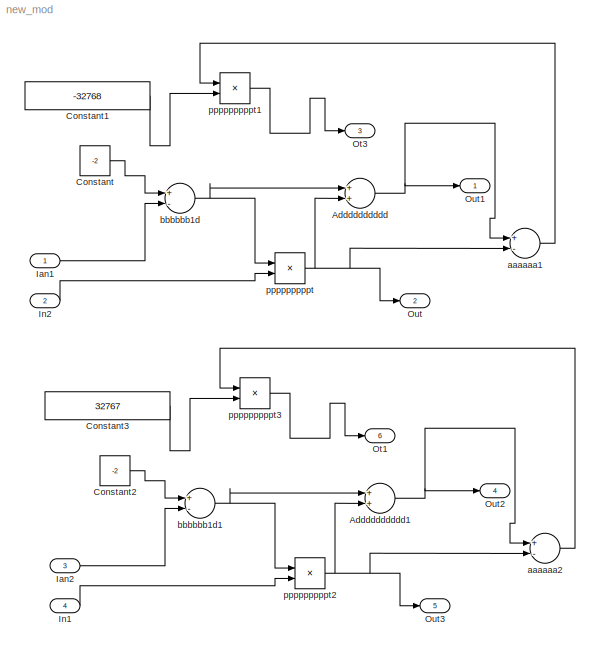
MODEL new_mod
KIND model
BLOCK [Sum] Adddddddddd
  InputSameDT = off
  OutDataTypeStr = Inherit: Inherit via internal rule
  Ports = [2, 1]
  SID = 34
  SaturateOnIntegerOverflow = off
BLOCK [Sum] Adddddddddd1
  InputSameDT = off
  OutDataTypeStr = Inherit: Inherit via internal rule
  Ports = [2, 1]
  SID = 45
  SaturateOnIntegerOverflow = off
BLOCK [Constant] Constant
  SID = 1
  Value = -2
BLOCK [Constant] Constant1
  SID = 42
  Value = -32768
BLOCK [Constant] Constant2
  SID = 46
  Value = -2
BLOCK [Constant] Constant3
  SID = 47
  Value = 32767
BLOCK [Inport] Ian1
  IconDisplay = Port number
  SID = 3
BLOCK [Inport] Ian2
  IconDisplay = Port number
  Port = 3
  SID = 43
BLOCK [Inport] In1
  IconDisplay = Port number
  Port = 4
  SID = 44
BLOCK [Inport] In2
  IconDisplay = Port number
  Port = 2
  SID = 9
BLOCK [Outport] Ot1
  IconDisplay = Port number
  Port = 6
  SID = 54
BLOCK [Outport] Ot3
  IconDisplay = Port number
  Port = 3
  SID = 40
BLOCK [Outport] Out
  IconDisplay = Port number
  Port = 2
  SID = 11
BLOCK [Outport] Out1
  IconDisplay = Port number
  SID = 2
BLOCK [Outport] Out2
  IconDisplay = Port number
  Port = 4
  SID = 52
BLOCK [Outport] Out3
  IconDisplay = Port number
  Port = 5
  SID = 53
BLOCK [Sum] aaaaaa1
  InputSameDT = off
  Inputs = +-
  OutDataTypeStr = Inherit: Inherit via internal rule
  Ports = [2, 1]
  SID = 39
  SaturateOnIntegerOverflow = off
BLOCK [Sum] aaaaaa2
  InputSameDT = off
  Inputs = +-
  OutDataTypeStr = Inherit: Inherit via internal rule
  Ports = [2, 1]
  SID = 48
  SaturateOnIntegerOverflow = off
BLOCK [Sum] bbbbbb1d
  InputSameDT = off
  Inputs = +-
  OutDataTypeStr = Inherit: Inherit via internal rule
  Ports = [2, 1]
  SID = 5
  SaturateOnIntegerOverflow = off
BLOCK [Sum] bbbbbb1d1
  InputSameDT = off
  Inputs = +-
  OutDataTypeStr = Inherit: Inherit via internal rule
  Ports = [2, 1]
  SID = 49
  SaturateOnIntegerOverflow = off
BLOCK [Product] pppppppppt
  InputSameDT = off
  OutDataTypeStr = Inherit: Inherit via internal rule
  Ports = [2, 1]
  SID = 4
  SaturateOnIntegerOverflow = off
BLOCK [Product] pppppppppt1
  InputSameDT = off
  Inputs = */
  OutDataTypeStr = Inherit: Inherit via internal rule
  Ports = [2, 1]
  SID = 41
  SaturateOnIntegerOverflow = off
BLOCK [Product] pppppppppt2
  InputSameDT = off
  OutDataTypeStr = Inherit: Inherit via internal rule
  Ports = [2, 1]
  SID = 50
  SaturateOnIntegerOverflow = off
BLOCK [Product] pppppppppt3
  InputSameDT = off
  Inputs = */
  OutDataTypeStr = Inherit: Inherit via internal rule
  Ports = [2, 1]
  SID = 51
  SaturateOnIntegerOverflow = off
NET Adddddddddd1:1 -> Out2:1, aaaaaa2:1
NET Adddddddddd:1 -> Out1:1, aaaaaa1:1
LINE Constant1:1 -> pppppppppt1:2
LINE Constant2:1 -> bbbbbb1d1:1
LINE Constant3:1 -> pppppppppt3:2
LINE Constant:1 -> bbbbbb1d:1
LINE Ian1:1 -> bbbbbb1d:2
LINE Ian2:1 -> bbbbbb1d1:2
LINE In1:1 -> pppppppppt2:2
LINE In2:1 -> pppppppppt:2
LINE aaaaaa1:1 -> pppppppppt1:1
LINE aaaaaa2:1 -> pppppppppt3:1
NET bbbbbb1d1:1 -> Adddddddddd1:1, pppppppppt2:1
NET bbbbbb1d:1 -> Adddddddddd:1, pppppppppt:1
LINE pppppppppt1:1 -> Ot3:1
NET pppppppppt2:1 -> Adddddddddd1:2, Out3:1, aaaaaa2:2
LINE pppppppppt3:1 -> Ot1:1
NET pppppppppt:1 -> Adddddddddd:2, Out:1, aaaaaa1:2
note: NET lines group one-source signal fan-out (src -> all destinations, sorted); 1:1 wires keep LINE
